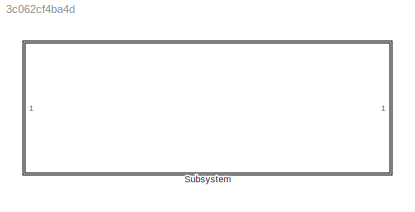
MODEL slx_3c062cf4ba4d
KIND model
CONFIG AbsTol = auto
CONFIG EnableMultiTasking = off
CONFIG FixedStep = auto
CONFIG MaxStep = auto
CONFIG MinStep = auto
CONFIG RelTol = 1e-3
CONFIG SampleTimeConstraint = Unconstrained
CONFIG SolverName = VariableStepAuto
CONFIG StartTime = 0.0
CONFIG StopTime = 10.0
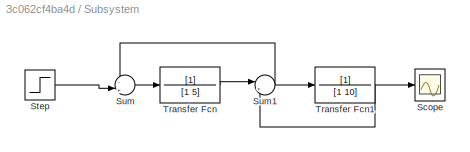
BLOCK [SubSystem] Subsystem
  Ports = []
  RequestExecContextInheritance = off
BLOCK [Scope] Subsystem/Scope
  Floating = off
  NumInputPorts = 1
  Ports = [1]
  ScopeSpecificationString = Simulink.scopes.TimeScopeBlockCfg('CurrentConfiguration', extmgr.ConfigurationSet(extmgr.Configuration('Core','General UI',true),extmgr.Configuration('Core','Source UI',true),extmgr.Configuration('Sources','WiredSimulink',true),extmgr.Configuration('Visuals','Time Domain',true,'SerializedDisplays',{struct('MinYLimReal','-0.00192','MaxYLimReal','0.01731','YLabelReal','','MinYLimMag','0.00000','MaxY...<+1364ch>
BLOCK [Step] Subsystem/Step
  SampleTime = 0
BLOCK [Sum] Subsystem/Sum
  Inputs = -|+|
  Ports = [2, 1]
BLOCK [Sum] Subsystem/Sum1
  Inputs = |+-
  Ports = [2, 1]
BLOCK [TransferFcn] Subsystem/Transfer Fcn
  Denominator = [1 5]
BLOCK [TransferFcn] Subsystem/Transfer Fcn1
  Denominator = [1 10]
LINE Subsystem/Step:1 -> Subsystem/Sum:2
NET Subsystem/Sum1:1 -> Subsystem/Sum:1, Subsystem/Transfer Fcn1:1
LINE Subsystem/Sum:1 -> Subsystem/Transfer Fcn:1
NET Subsystem/Transfer Fcn1:1 -> Subsystem/Scope:1, Subsystem/Sum1:2
LINE Subsystem/Transfer Fcn:1 -> Subsystem/Sum1:1
note: NET lines group one-source signal fan-out (src -> all destinations, sorted); 1:1 wires keep LINE
